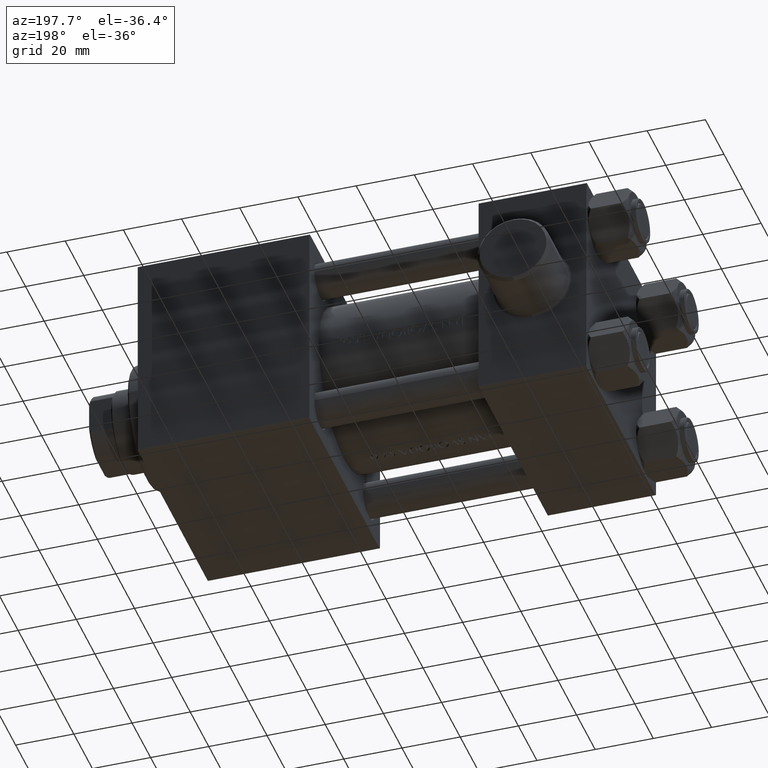
[diagram: clean part render]
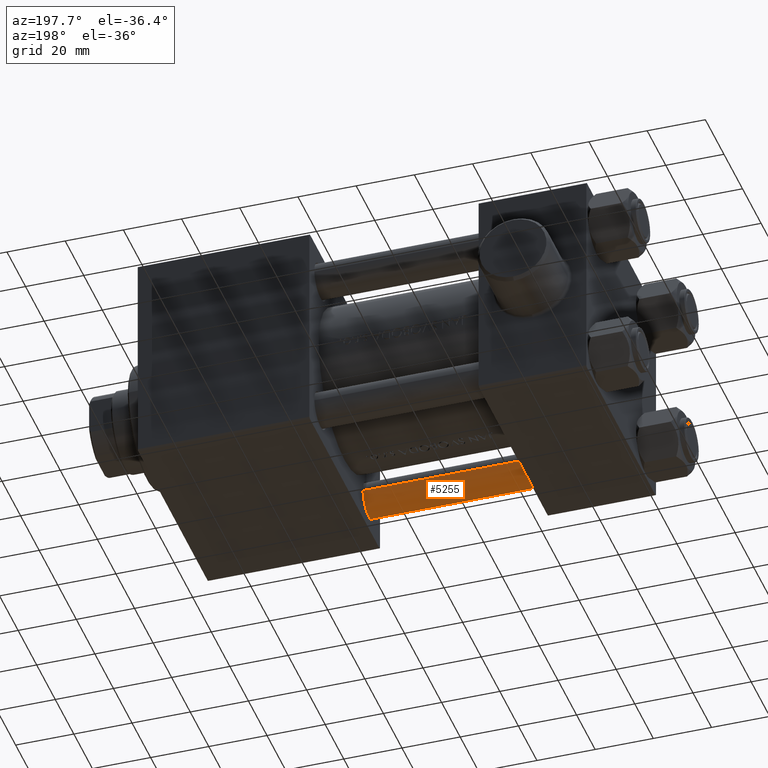
[diagram: same view with one face highlighted and labeled with its STEP entity id]
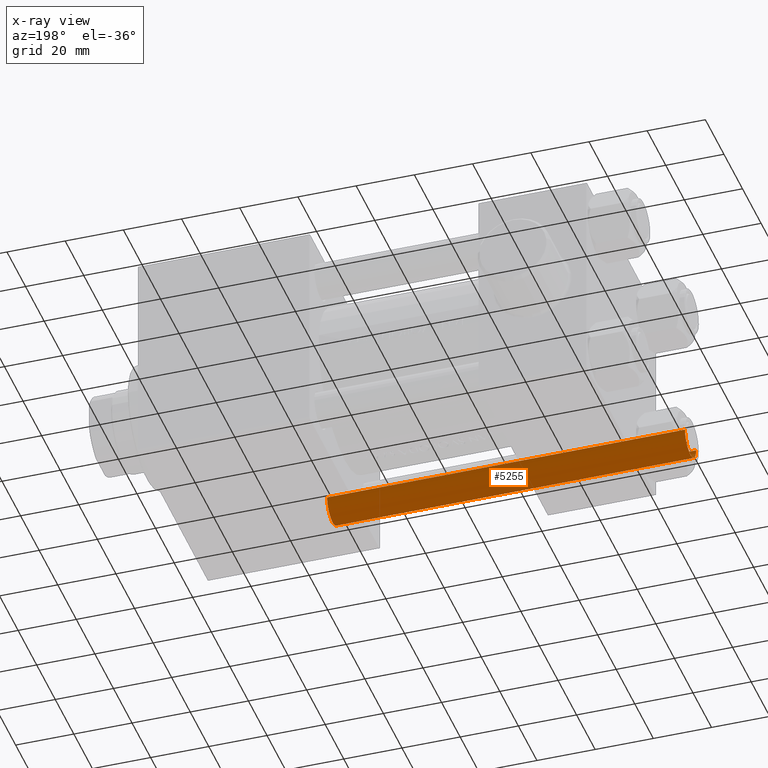
[diagram: x-ray of the same camera — body ghosted, the highlighted face saturated]
A machine part, auxiliary view. The second image highlights one B-rep face of the part: STEP entity #5255.
The next image is the same camera in x-ray: the body ghosted, the highlighted face saturated — about 0% of this face is hidden behind the body in this view.
In plain terms, the highlighted cylindrical surface (edge-blend (fillet) strip) has radius 6 mm, axis along (-1, 0, 0).
Its self-contained STEP definition (entity closure, byte-faithful):
#795 = CIRCLE ( 'NONE', #32896, 6.000000000000000888 ) ;
#1847 = DIRECTION ( 'NONE',  ( -0.000000000000000000, -0.000000000000000000, -1.000000000000000000 ) ) ;
#4633 = CARTESIAN_POINT ( 'NONE',  ( 0.000000000000000000, 0.000000000000000000, 0.4999999999999865663 ) ) ;
#5191 = DIRECTION ( 'NONE',  ( 1.000000000000000000, 0.000000000000000000, 0.000000000000000000 ) ) ;
#5255 = ADVANCED_FACE ( 'NONE', ( #30370 ), #19388, .T. ) ;
#5364 = CARTESIAN_POINT ( 'NONE',  ( 0.000000000000000000, 0.000000000000000000, 124.0000000000000000 ) ) ;
#6055 = DIRECTION ( 'NONE',  ( -1.000000000000000000, 0.000000000000000000, 0.000000000000000000 ) ) ;
#6374 = ORIENTED_EDGE ( 'NONE', *, *, #43195, .T. ) ;
#7325 = DIRECTION ( 'NONE',  ( -0.000000000000000000, -0.000000000000000000, -1.000000000000000000 ) ) ;
#9106 = CARTESIAN_POINT ( 'NONE',  ( 6.000000000000000888, 7.347880794884120722E-16, 0.4999999999999865663 ) ) ;
#9198 = DIRECTION ( 'NONE',  ( -0.000000000000000000, -0.000000000000000000, -1.000000000000000000 ) ) ;
#10386 = EDGE_CURVE ( 'NONE', #29763, #24314, #40862, .T. ) ;
#12660 = AXIS2_PLACEMENT_3D ( 'NONE', #5364, #1847, #6055 ) ;
#13686 = CARTESIAN_POINT ( 'NONE',  ( 6.000000000000000888, 7.347880794884120722E-16, 123.5000000000000426 ) ) ;
#14645 = EDGE_LOOP ( 'NONE', ( #38054, #28972, #6374, #41169 ) ) ;
#15611 = DIRECTION ( 'NONE',  ( -0.000000000000000000, -0.000000000000000000, 1.000000000000000000 ) ) ;
#15837 = DIRECTION ( 'NONE',  ( 1.000000000000000000, 0.000000000000000000, 0.000000000000000000 ) ) ;
#16202 = AXIS2_PLACEMENT_3D ( 'NONE', #4633, #15611, #15837 ) ;
#18266 = VERTEX_POINT ( 'NONE', #13686 ) ;
#19200 = EDGE_CURVE ( 'NONE', #18266, #24314, #41000, .T. ) ;
#19388 = CYLINDRICAL_SURFACE ( 'NONE', #12660, 6.000000000000000888 ) ;
#20333 = VECTOR ( 'NONE', #7325, 1000.000000000000000 ) ;
#23045 = VERTEX_POINT ( 'NONE', #35358 ) ;
#24314 = VERTEX_POINT ( 'NONE', #9106 ) ;
#26467 = CARTESIAN_POINT ( 'NONE',  ( 0.000000000000000000, 0.000000000000000000, 123.5000000000000426 ) ) ;
#26732 = CARTESIAN_POINT ( 'NONE',  ( -6.000000000000000888, 0.000000000000000000, 0.4999999999999865663 ) ) ;
#28394 = EDGE_CURVE ( 'NONE', #18266, #23045, #795, .T. ) ;
#28972 = ORIENTED_EDGE ( 'NONE', *, *, #28394, .T. ) ;
#29763 = VERTEX_POINT ( 'NONE', #26732 ) ;
#30370 = FACE_OUTER_BOUND ( 'NONE', #14645, .T. ) ;
#32896 = AXIS2_PLACEMENT_3D ( 'NONE', #26467, #40727, #5191 ) ;
#33540 = VECTOR ( 'NONE', #9198, 1000.000000000000000 ) ;
#35358 = CARTESIAN_POINT ( 'NONE',  ( -6.000000000000000888, 0.000000000000000000, 123.5000000000000426 ) ) ;
#38054 = ORIENTED_EDGE ( 'NONE', *, *, #19200, .F. ) ;
#39347 = LINE ( 'NONE', #39576, #20333 ) ;
#39576 = CARTESIAN_POINT ( 'NONE',  ( -6.000000000000000888, 0.000000000000000000, 124.0000000000000000 ) ) ;
#40727 = DIRECTION ( 'NONE',  ( 0.000000000000000000, 0.000000000000000000, -1.000000000000000000 ) ) ;
#40862 = CIRCLE ( 'NONE', #16202, 6.000000000000000888 ) ;
#41000 = LINE ( 'NONE', #44754, #33540 ) ;
#41169 = ORIENTED_EDGE ( 'NONE', *, *, #10386, .T. ) ;
#43195 = EDGE_CURVE ( 'NONE', #23045, #29763, #39347, .T. ) ;
#44754 = CARTESIAN_POINT ( 'NONE',  ( 6.000000000000000888, 7.347880794884120722E-16, 124.0000000000000000 ) ) ;